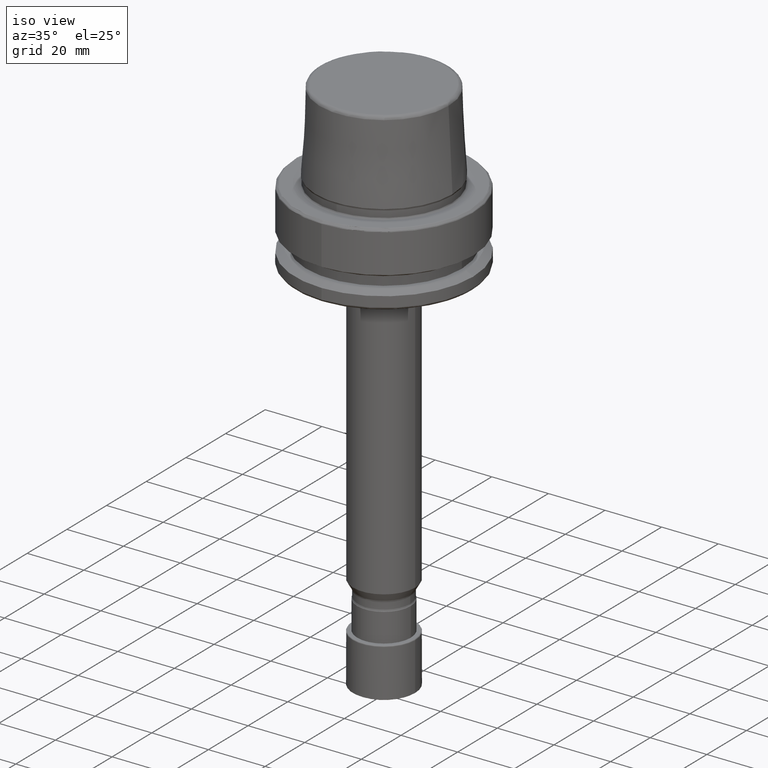
[diagram: clean part render]
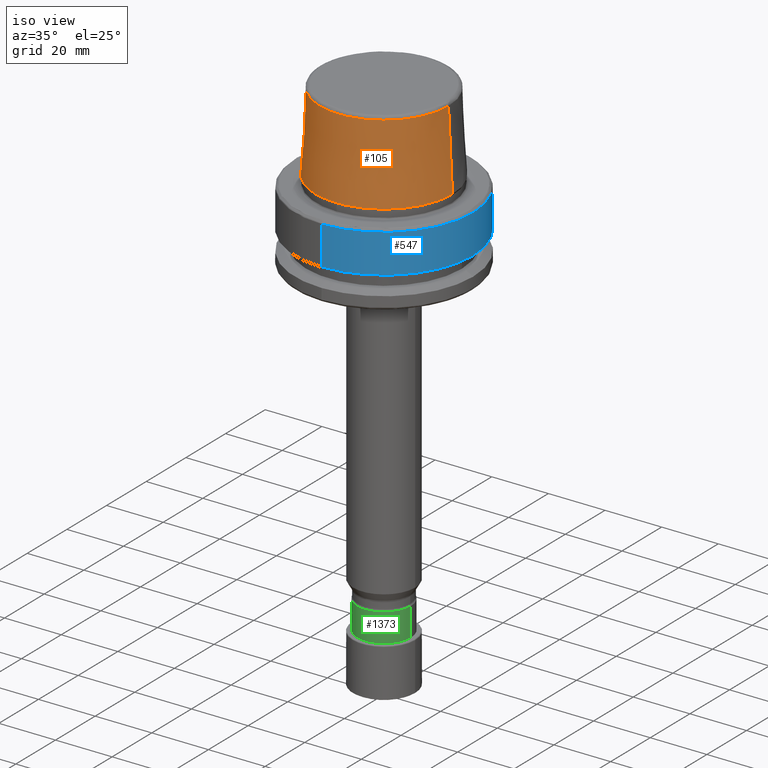
[diagram: same view with three faces highlighted in distinct colors, each labeled with its STEP entity id]
A machine part, iso view with three faces highlighted in distinct colors.
Their STEP definitions:

[orange] entity #105 — the highlighted conical surface has half-angle 2.868 deg.
#95 = DIRECTION ( 'NONE',  ( 0.0000000000000000000, 0.0000000000000000000, 1.000000000000000000 ) ) ;
#105 = ADVANCED_FACE ( 'NONE', ( #2580 ), #2435, .T. ) ;
#129 = LINE ( 'NONE', #354, #2462 ) ;
#170 = CIRCLE ( 'NONE', #395, 22.77957961900000300 ) ;
#192 = CARTESIAN_POINT ( 'NONE',  ( -24.17032625100000200, 0.0000000000000000000, 3.000000000000002700 ) ) ;
#202 = ORIENTED_EDGE ( 'NONE', *, *, #831, .T. ) ;
#313 = EDGE_LOOP ( 'NONE', ( #2102, #2632, #202, #1796 ) ) ;
#354 = CARTESIAN_POINT ( 'NONE',  ( -22.77957961900000300, 0.0000000000000000000, 30.76004333299999500 ) ) ;
#374 = VECTOR ( 'NONE', #2029, 1000.000000000000100 ) ;
#395 = AXIS2_PLACEMENT_3D ( 'NONE', #1194, #2606, #1406 ) ;
#549 = EDGE_CURVE ( 'NONE', #806, #1619, #2648, .T. ) ;
#574 = CARTESIAN_POINT ( 'NONE',  ( 22.77957961900000300, 2.789693926633063400E-015, 30.76004333299999500 ) ) ;
#735 = EDGE_CURVE ( 'NONE', #1721, #1619, #2496, .T. ) ;
#806 = VERTEX_POINT ( 'NONE', #1797 ) ;
#831 = EDGE_CURVE ( 'NONE', #1304, #1721, #129, .T. ) ;
#1023 = CARTESIAN_POINT ( 'NONE',  ( 24.17032625100000200, 2.960011267763439600E-015, 3.000000000000002700 ) ) ;
#1194 = CARTESIAN_POINT ( 'NONE',  ( 0.0000000000000000000, 0.0000000000000000000, 30.76004333299997700 ) ) ;
#1304 = VERTEX_POINT ( 'NONE', #2434 ) ;
#1371 = CARTESIAN_POINT ( 'NONE',  ( 0.0000000000000000000, 0.0000000000000000000, 3.000000000000002700 ) ) ;
#1406 = DIRECTION ( 'NONE',  ( -1.000000000000000000, 0.0000000000000000000, 9.138308107476618100E-016 ) ) ;
#1568 = DIRECTION ( 'NONE',  ( 1.000000000000000000, 0.0000000000000000000, -1.076561891198119100E-016 ) ) ;
#1615 = DIRECTION ( 'NONE',  ( -1.000000000000000000, 0.0000000000000000000, 0.0000000000000000000 ) ) ;
#1619 = VERTEX_POINT ( 'NONE', #1023 ) ;
#1699 = AXIS2_PLACEMENT_3D ( 'NONE', #1371, #95, #1568 ) ;
#1721 = VERTEX_POINT ( 'NONE', #192 ) ;
#1796 = ORIENTED_EDGE ( 'NONE', *, *, #735, .T. ) ;
#1797 = CARTESIAN_POINT ( 'NONE',  ( 22.77957961885135400, -7.008254819992292000E-009, 30.76004333299252700 ) ) ;
#1934 = DIRECTION ( 'NONE',  ( 0.0000000000000000000, 0.0000000000000000000, -1.000000000000000000 ) ) ;
#2015 = DIRECTION ( 'NONE',  ( -0.05003611050185009100, 0.0000000000000000000, -0.9987474093312315200 ) ) ;
#2028 = CARTESIAN_POINT ( 'NONE',  ( 0.0000000000000000000, 0.0000000000000000000, 30.76004333299999500 ) ) ;
#2029 = DIRECTION ( 'NONE',  ( 0.05003611050185009100, 6.127656256787398800E-018, -0.9987474093312315200 ) ) ;
#2102 = ORIENTED_EDGE ( 'NONE', *, *, #549, .F. ) ;
#2432 = EDGE_CURVE ( 'NONE', #1304, #806, #170, .T. ) ;
#2434 = CARTESIAN_POINT ( 'NONE',  ( -22.77957961885135400, -1.022730554035613000E-009, 30.76004333299252700 ) ) ;
#2435 = CONICAL_SURFACE ( 'NONE', #2650, 22.77957961900000300, 0.05005701256328789300 ) ;
#2462 = VECTOR ( 'NONE', #2015, 1000.000000000000100 ) ;
#2496 = CIRCLE ( 'NONE', #1699, 24.17032625100000200 ) ;
#2580 = FACE_OUTER_BOUND ( 'NONE', #313, .T. ) ;
#2606 = DIRECTION ( 'NONE',  ( -0.0000000000000000000, -0.0000000000000000000, 1.000000000000000000 ) ) ;
#2632 = ORIENTED_EDGE ( 'NONE', *, *, #2432, .F. ) ;
#2648 = LINE ( 'NONE', #574, #374 ) ;
#2650 = AXIS2_PLACEMENT_3D ( 'NONE', #2028, #1934, #1615 ) ;

[blue] entity #547 — the highlighted cylindrical surface (partial cylindrical patch) has radius 31.5 mm, axis along (0, -0, 1).
#7 = AXIS2_PLACEMENT_3D ( 'NONE', #1409, #771, #2395 ) ;
#119 = CIRCLE ( 'NONE', #239, 31.50000000000000000 ) ;
#177 = ORIENTED_EDGE ( 'NONE', *, *, #2410, .F. ) ;
#208 = CARTESIAN_POINT ( 'NONE',  ( 0.0000000000000000000, 0.0000000000000000000, -14.64270970204889500 ) ) ;
#209 = LINE ( 'NONE', #1594, #954 ) ;
#220 = ORIENTED_EDGE ( 'NONE', *, *, #2089, .T. ) ;
#238 = VECTOR ( 'NONE', #462, 1000.000000000000000 ) ;
#239 = AXIS2_PLACEMENT_3D ( 'NONE', #2199, #976, #2403 ) ;
#430 = DIRECTION ( 'NONE',  ( 1.000000000000000000, 0.0000000000000000000, 0.0000000000000000000 ) ) ;
#444 = VERTEX_POINT ( 'NONE', #1260 ) ;
#462 = DIRECTION ( 'NONE',  ( 0.0000000000000000000, -2.753529326947312600E-017, 1.000000000000000000 ) ) ;
#499 = AXIS2_PLACEMENT_3D ( 'NONE', #2466, #1252, #2666 ) ;
#547 = ADVANCED_FACE ( 'NONE', ( #2266 ), #1385, .T. ) ;
#610 = VERTEX_POINT ( 'NONE', #812 ) ;
#660 = ORIENTED_EDGE ( 'NONE', *, *, #764, .F. ) ;
#684 = VERTEX_POINT ( 'NONE', #2315 ) ;
#764 = EDGE_CURVE ( 'NONE', #444, #684, #1677, .T. ) ;
#771 = DIRECTION ( 'NONE',  ( 0.0000000000000000000, -2.753529326947312600E-017, 1.000000000000000000 ) ) ;
#786 = EDGE_CURVE ( 'NONE', #1990, #444, #119, .T. ) ;
#812 = CARTESIAN_POINT ( 'NONE',  ( 3.857637417314156400E-015, 31.49999999999989700, -14.64270970204889500 ) ) ;
#825 = CARTESIAN_POINT ( 'NONE',  ( 0.0000000000000000000, -31.49999999999989700, -14.64270970204889500 ) ) ;
#837 = EDGE_LOOP ( 'NONE', ( #1368, #1428, #660, #900, #177, #220 ) ) ;
#900 = ORIENTED_EDGE ( 'NONE', *, *, #786, .F. ) ;
#954 = VECTOR ( 'NONE', #2004, 1000.000000000000000 ) ;
#965 = DIRECTION ( 'NONE',  ( 0.0000000000000000000, 0.0000000000000000000, 1.000000000000000000 ) ) ;
#976 = DIRECTION ( 'NONE',  ( 0.0000000000000000000, 0.0000000000000000000, 1.000000000000000000 ) ) ;
#1009 = CARTESIAN_POINT ( 'NONE',  ( 0.0000000000000000000, -31.50000000000000000, -0.9656854250000013200 ) ) ;
#1104 = CIRCLE ( 'NONE', #499, 31.49999999999989700 ) ;
#1163 = AXIS2_PLACEMENT_3D ( 'NONE', #208, #1671, #430 ) ;
#1252 = DIRECTION ( 'NONE',  ( -0.0000000000000000000, -0.0000000000000000000, 1.000000000000000000 ) ) ;
#1260 = CARTESIAN_POINT ( 'NONE',  ( 31.50000000000453000, -2.828499295505090300E-009, -0.9656854250064806900 ) ) ;
#1270 = CARTESIAN_POINT ( 'NONE',  ( 3.857637417314162700E-015, 31.50000000000000000, -14.62250092700000100 ) ) ;
#1368 = ORIENTED_EDGE ( 'NONE', *, *, #1746, .T. ) ;
#1385 = CYLINDRICAL_SURFACE ( 'NONE', #7, 31.50000000000000000 ) ;
#1398 = EDGE_CURVE ( 'NONE', #610, #684, #1484, .T. ) ;
#1409 = CARTESIAN_POINT ( 'NONE',  ( 0.0000000000000000000, 0.0000000000000000000, -14.62250092700000100 ) ) ;
#1428 = ORIENTED_EDGE ( 'NONE', *, *, #1398, .T. ) ;
#1484 = LINE ( 'NONE', #1270, #238 ) ;
#1491 = CARTESIAN_POINT ( 'NONE',  ( 31.49999999999989700, 0.0000000000000000000, -14.64270970204889500 ) ) ;
#1594 = CARTESIAN_POINT ( 'NONE',  ( 0.0000000000000000000, -31.50000000000000000, -14.62250092700000100 ) ) ;
#1671 = DIRECTION ( 'NONE',  ( -0.0000000000000000000, -0.0000000000000000000, 1.000000000000000000 ) ) ;
#1677 = CIRCLE ( 'NONE', #2634, 31.50000000000000000 ) ;
#1690 = VERTEX_POINT ( 'NONE', #825 ) ;
#1746 = EDGE_CURVE ( 'NONE', #2617, #610, #2155, .T. ) ;
#1990 = VERTEX_POINT ( 'NONE', #1009 ) ;
#2004 = DIRECTION ( 'NONE',  ( 0.0000000000000000000, -2.753529326947312600E-017, 1.000000000000000000 ) ) ;
#2089 = EDGE_CURVE ( 'NONE', #1690, #2617, #1104, .T. ) ;
#2155 = CIRCLE ( 'NONE', #1163, 31.49999999999989700 ) ;
#2191 = CARTESIAN_POINT ( 'NONE',  ( 0.0000000000000000000, 0.0000000000000000000, -0.9656854250000013200 ) ) ;
#2199 = CARTESIAN_POINT ( 'NONE',  ( 0.0000000000000000000, 0.0000000000000000000, -0.9656854250000013200 ) ) ;
#2266 = FACE_OUTER_BOUND ( 'NONE', #837, .T. ) ;
#2315 = CARTESIAN_POINT ( 'NONE',  ( 3.857637417314162700E-015, 31.50000000000000000, -0.9656854250000013200 ) ) ;
#2389 = DIRECTION ( 'NONE',  ( 1.000000000000000000, 0.0000000000000000000, 3.786102824552555300E-017 ) ) ;
#2395 = DIRECTION ( 'NONE',  ( 0.0000000000000000000, -1.000000000000000000, 0.0000000000000000000 ) ) ;
#2403 = DIRECTION ( 'NONE',  ( 1.000000000000000000, 0.0000000000000000000, 3.786102824552555300E-017 ) ) ;
#2410 = EDGE_CURVE ( 'NONE', #1690, #1990, #209, .T. ) ;
#2466 = CARTESIAN_POINT ( 'NONE',  ( 0.0000000000000000000, 0.0000000000000000000, -14.64270970204889500 ) ) ;
#2617 = VERTEX_POINT ( 'NONE', #1491 ) ;
#2634 = AXIS2_PLACEMENT_3D ( 'NONE', #2191, #965, #2389 ) ;
#2666 = DIRECTION ( 'NONE',  ( 1.000000000000000000, 0.0000000000000000000, 0.0000000000000000000 ) ) ;

[green] entity #1373 — the highlighted cylindrical surface (edge-blend (fillet) strip) has radius 9.45 mm, axis along (0, 0, 1).
#153 = ORIENTED_EDGE ( 'NONE', *, *, #2337, .F. ) ;
#203 = DIRECTION ( 'NONE',  ( 1.000000000000000000, 0.0000000000000000000, 0.0000000000000000000 ) ) ;
#248 = VERTEX_POINT ( 'NONE', #500 ) ;
#256 = AXIS2_PLACEMENT_3D ( 'NONE', #1996, #756, #2190 ) ;
#312 = VERTEX_POINT ( 'NONE', #1819 ) ;
#346 = CARTESIAN_POINT ( 'NONE',  ( -9.449999999999988600, 0.0000000000000000000, -132.4000000000000100 ) ) ;
#500 = CARTESIAN_POINT ( 'NONE',  ( -9.450000000000001100, 1.157291225194249000E-015, -142.5000000000000300 ) ) ;
#503 = VECTOR ( 'NONE', #1324, 1000.000000000000000 ) ;
#514 = LINE ( 'NONE', #1918, #503 ) ;
#617 = DIRECTION ( 'NONE',  ( 0.0000000000000000000, 0.0000000000000000000, 1.000000000000000000 ) ) ;
#756 = DIRECTION ( 'NONE',  ( 0.0000000000000000000, 0.0000000000000000000, 1.000000000000000000 ) ) ;
#839 = DIRECTION ( 'NONE',  ( 0.0000000000000000000, 0.0000000000000000000, 1.000000000000000000 ) ) ;
#895 = AXIS2_PLACEMENT_3D ( 'NONE', #1854, #617, #2060 ) ;
#953 = CARTESIAN_POINT ( 'NONE',  ( 9.450000000000001100, 0.0000000000000000000, -142.5000000000000300 ) ) ;
#1051 = EDGE_CURVE ( 'NONE', #248, #312, #2068, .T. ) ;
#1074 = EDGE_CURVE ( 'NONE', #312, #2131, #1927, .T. ) ;
#1199 = ORIENTED_EDGE ( 'NONE', *, *, #1074, .T. ) ;
#1256 = CARTESIAN_POINT ( 'NONE',  ( 0.0000000000000000000, 0.0000000000000000000, -142.5000000000000300 ) ) ;
#1324 = DIRECTION ( 'NONE',  ( 0.0000000000000000000, 0.0000000000000000000, 1.000000000000000000 ) ) ;
#1373 = ADVANCED_FACE ( 'NONE', ( #1672 ), #1551, .T. ) ;
#1546 = CIRCLE ( 'NONE', #256, 9.450000000000001100 ) ;
#1551 = CYLINDRICAL_SURFACE ( 'NONE', #2093, 9.450000000000001100 ) ;
#1583 = DIRECTION ( 'NONE',  ( 0.0000000000000000000, 0.0000000000000000000, 1.000000000000000000 ) ) ;
#1672 = FACE_OUTER_BOUND ( 'NONE', #2564, .T. ) ;
#1760 = ORIENTED_EDGE ( 'NONE', *, *, #1928, .F. ) ;
#1793 = VECTOR ( 'NONE', #1583, 1000.000000000000000 ) ;
#1819 = CARTESIAN_POINT ( 'NONE',  ( 9.450000000000001100, 0.0000000000000000000, -142.5000000000000300 ) ) ;
#1854 = CARTESIAN_POINT ( 'NONE',  ( 0.0000000000000000000, 0.0000000000000000000, -142.5000000000000300 ) ) ;
#1918 = CARTESIAN_POINT ( 'NONE',  ( -9.450000000000001100, 1.157291225194249000E-015, -142.5000000000000300 ) ) ;
#1927 = LINE ( 'NONE', #953, #1793 ) ;
#1928 = EDGE_CURVE ( 'NONE', #2438, #2131, #1546, .T. ) ;
#1996 = CARTESIAN_POINT ( 'NONE',  ( 0.0000000000000000000, 0.0000000000000000000, -132.4000000000000100 ) ) ;
#2060 = DIRECTION ( 'NONE',  ( 1.000000000000000000, 0.0000000000000000000, 0.0000000000000000000 ) ) ;
#2064 = CARTESIAN_POINT ( 'NONE',  ( 9.450000000000015300, 1.157291225194250600E-015, -132.4000000000000100 ) ) ;
#2068 = CIRCLE ( 'NONE', #895, 9.450000000000001100 ) ;
#2093 = AXIS2_PLACEMENT_3D ( 'NONE', #1256, #839, #203 ) ;
#2131 = VERTEX_POINT ( 'NONE', #2064 ) ;
#2150 = ORIENTED_EDGE ( 'NONE', *, *, #1051, .T. ) ;
#2190 = DIRECTION ( 'NONE',  ( 0.0000000000000000000, -1.000000000000000000, 0.0000000000000000000 ) ) ;
#2337 = EDGE_CURVE ( 'NONE', #248, #2438, #514, .T. ) ;
#2438 = VERTEX_POINT ( 'NONE', #346 ) ;
#2564 = EDGE_LOOP ( 'NONE', ( #153, #2150, #1199, #1760 ) ) ;